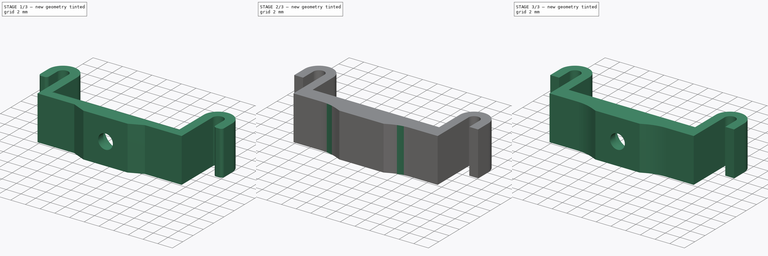
[diagram: build sequence overview — one tinted view per stage of 3, left to right]
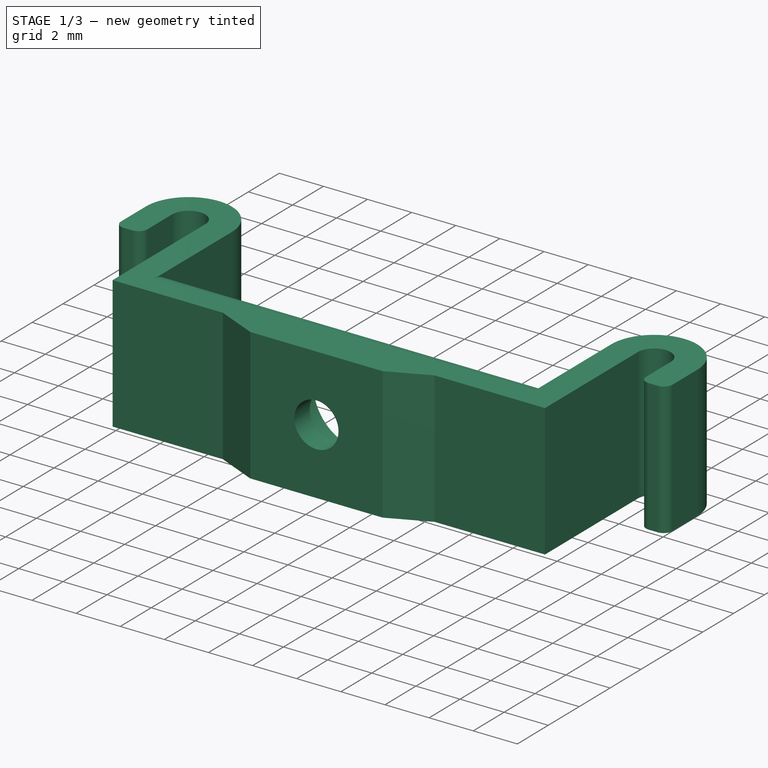
[diagram: stage 1 of 3 — iso view after this stage's code; geometry added in this stage tinted green]
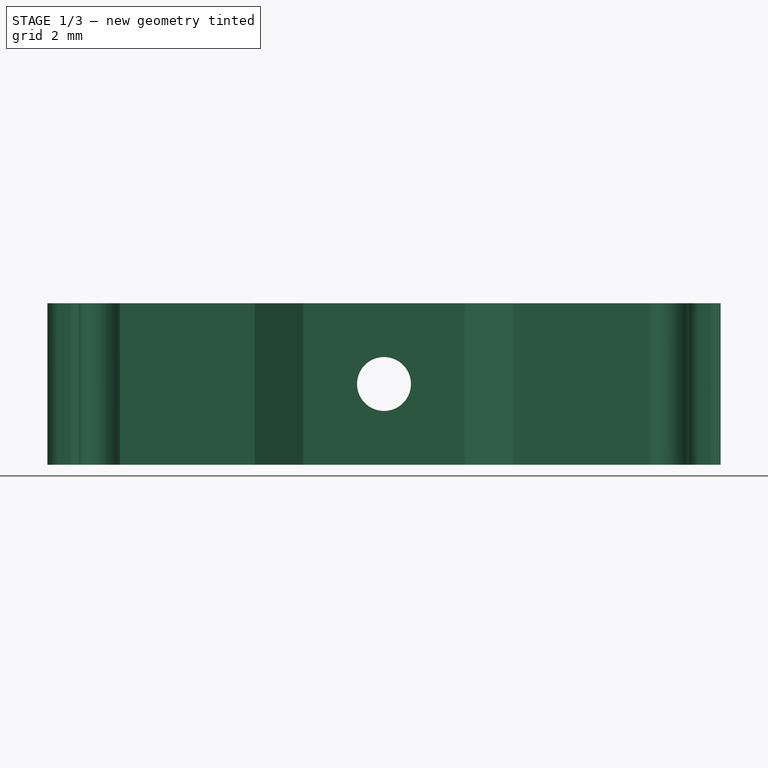
[diagram: stage 1 of 3 — front view after this stage's code; geometry added in this stage tinted green]
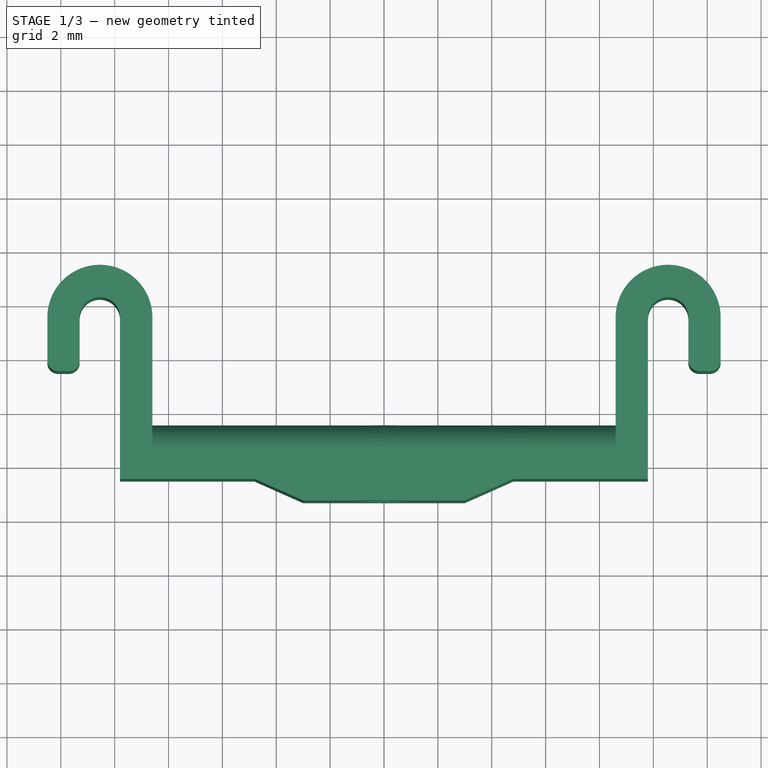
[diagram: stage 1 of 3 — top view after this stage's code; geometry added in this stage tinted green]
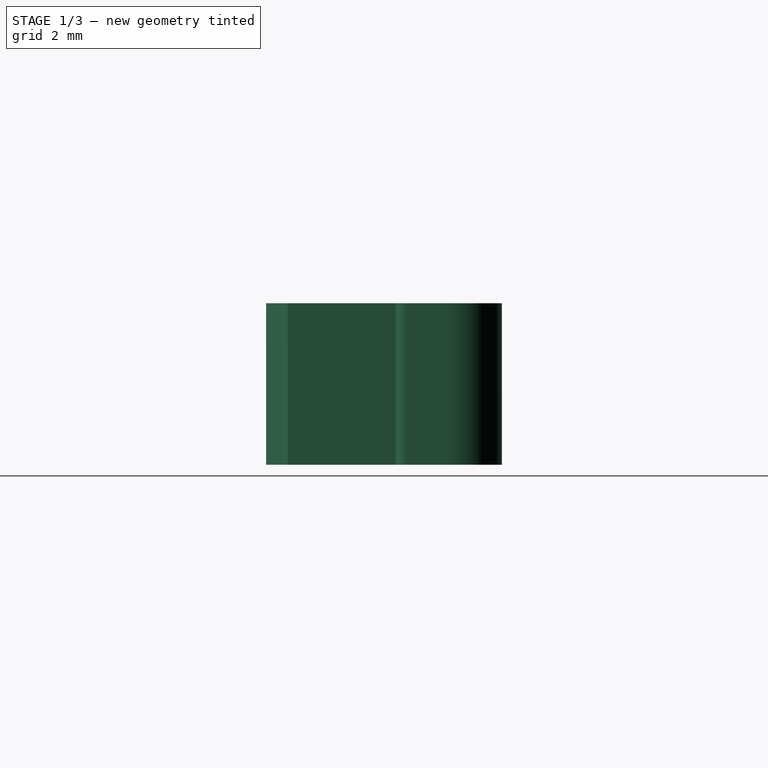
[diagram: stage 1 of 3 — right view after this stage's code; geometry added in this stage tinted green]
FCSTD DOCUMENT  (FreeCAD 0.16R6707 (Git))
Label: battery_holder_2s_tgy_nano_300
License: All rights reserved
LicenseURL: http://en.wikipedia.org/wiki/All_rights_reserved
objects: PartDesign::Fillet×4, Sketcher::SketchObject×3, PartDesign::Pocket×2, PartDesign::Pad×1, Part::Feature×1
note: 14 computed .brp shape members not serialized (recipe doc carries the construction recipe); baked Part::Feature solids carry a one-line shape summary decoded from their .brp

FEATURE [Part::Feature] Pocket001001  label="Pocket002"
  shape: bbox 25 x 8.75 x 6 mm, 25 faces (baked)
FEATURE [PartDesign::Fillet] Fillet
  Base = -> Pocket001001 [Edge27,Edge44]
  Radius = 1
FEATURE [PartDesign::Fillet] Fillet001
  Base = -> Fillet [Edge80,Edge78,Edge74,Edge73]
  Radius = 0.4
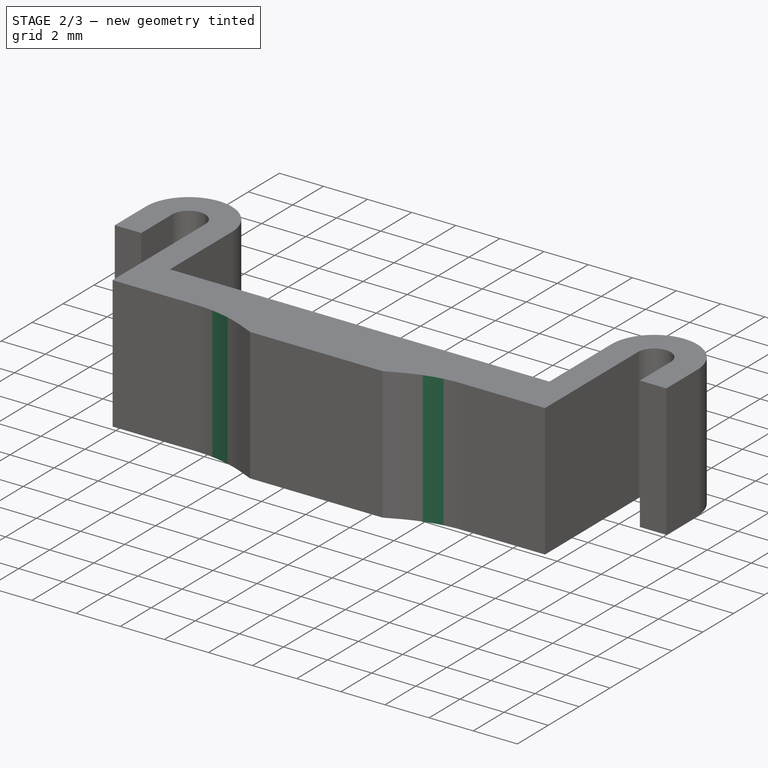
[diagram: stage 2 of 3 — iso view after this stage's code; geometry added in this stage tinted green]
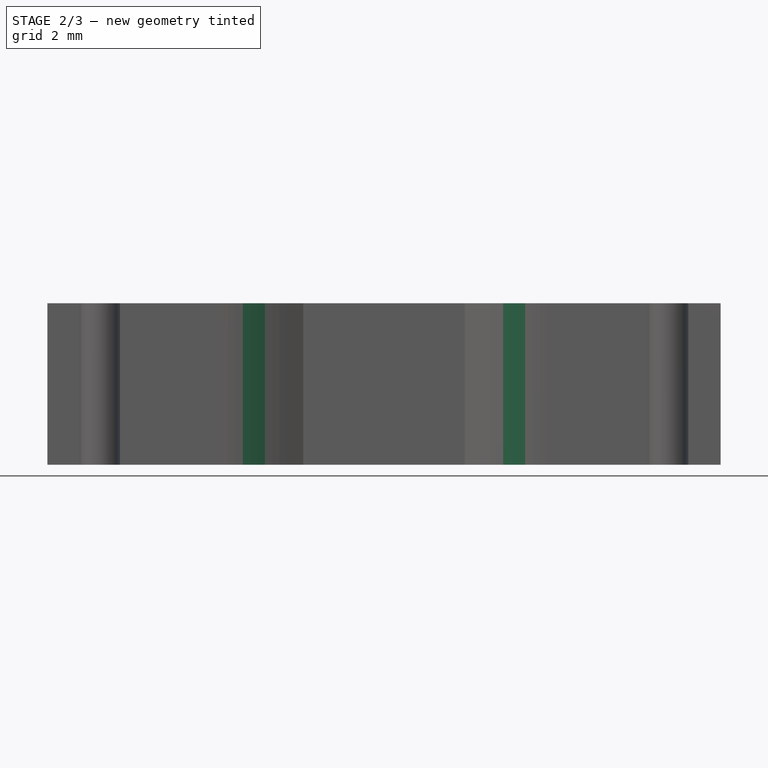
[diagram: stage 2 of 3 — front view after this stage's code; geometry added in this stage tinted green]
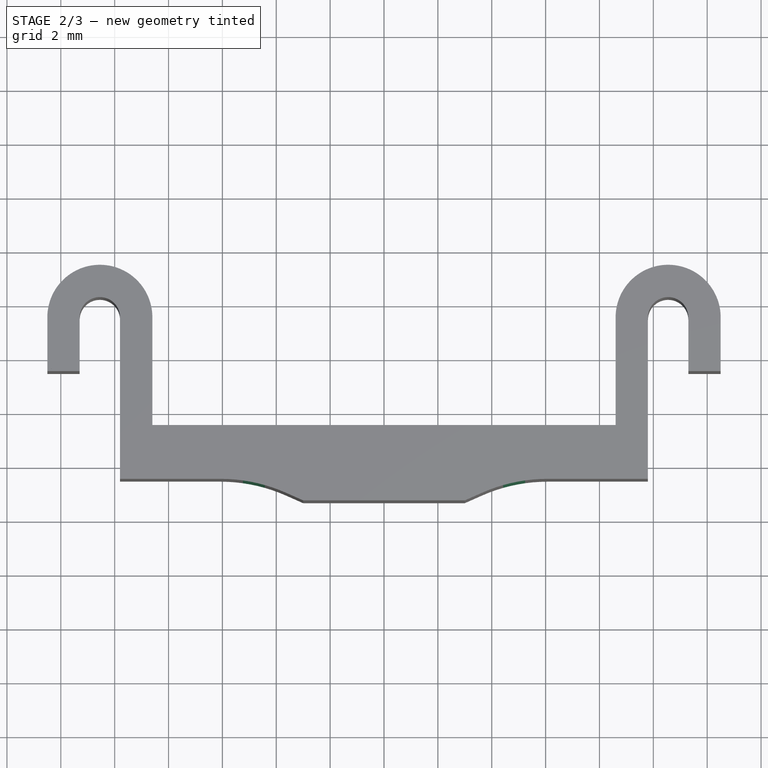
[diagram: stage 2 of 3 — top view after this stage's code; geometry added in this stage tinted green]
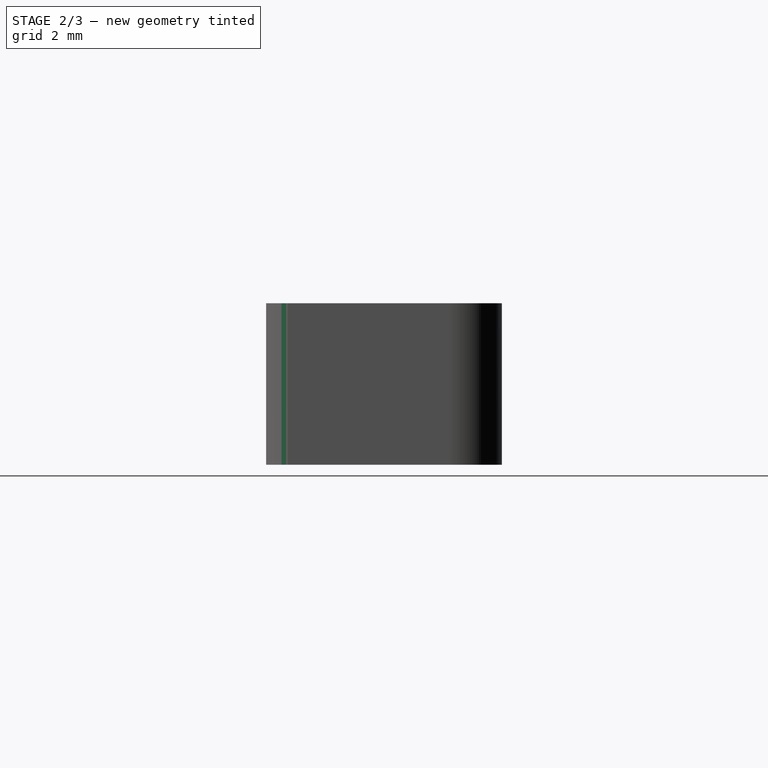
[diagram: stage 2 of 3 — right view after this stage's code; geometry added in this stage tinted green]
FEATURE [Sketcher::SketchObject] Sketch
  Placement = pos=(0,0,3) rot=(0,0,1;0rad)
  sketch-geometry (28):
    g0: LineSegment [constr] StartX=0 StartY=0 StartZ=0 EndX=-8.5 EndY=0 EndZ=0
    g1: LineSegment [constr] StartX=-8.5 StartY=0 StartZ=0 EndX=-8.5 EndY=13 EndZ=0
    g2: LineSegment [constr] StartX=0 StartY=0 StartZ=0 EndX=8.5 EndY=0 EndZ=0
    g3: LineSegment [constr] StartX=8.5 StartY=0 StartZ=0 EndX=8.5 EndY=13 EndZ=0
    g4: LineSegment [constr] StartX=8.5 StartY=13 StartZ=0 EndX=-8.5 EndY=13 EndZ=0
    g5: LineSegment StartX=-9.8 StartY=3.5 StartZ=0 EndX=-9.8 EndY=-2.5 EndZ=0
    g6: LineSegment StartX=-3 StartY=-3.3 StartZ=0 EndX=3 EndY=-3.3 EndZ=0
    g7: LineSegment StartX=9.01388 StartY=3.5 StartZ=0 EndX=8.6 EndY=3.5 EndZ=0
    g8: LineSegment StartX=-8.6 StartY=3.5 StartZ=0 EndX=-8.6 EndY=-0.5 EndZ=0
    g9: LineSegment StartX=-8.6 StartY=-0.5 StartZ=0 EndX=8.6 EndY=-0.5 EndZ=0
    g10: LineSegment StartX=-3 StartY=-3.3 StartZ=0 EndX=-4.8 EndY=-2.5 EndZ=0
    g11: LineSegment StartX=-9.8 StartY=-2.5 StartZ=0 EndX=-4.8 EndY=-2.5 EndZ=0
    g12: LineSegment StartX=-12.5 StartY=3.5 StartZ=0 EndX=-12.5 EndY=1.5 EndZ=0
    g13: LineSegment StartX=-12.5 StartY=1.5 StartZ=0 EndX=-11.3 EndY=1.5 EndZ=0
    g14: LineSegment StartX=-11.3 StartY=3.5 StartZ=0 EndX=-11.3 EndY=1.5 EndZ=0
    g15: LineSegment [constr] StartX=-12.5 StartY=3.5 StartZ=0 EndX=-9.01162 EndY=3.5 EndZ=0
    g16: ArcOfCircle CenterX=-10.55 CenterY=3.5 CenterZ=0 NormalX=0 NormalY=0 NormalZ=1 Radius=1.95 StartAngle=1.23125e-06 EndAngle=3.14159
    g17: ArcOfCircle CenterX=-10.55 CenterY=3.5 CenterZ=0 NormalX=0 NormalY=0 NormalZ=1 Radius=0.75 StartAngle=0 EndAngle=3.14159
    g18: LineSegment StartX=3 StartY=-3.3 StartZ=0 EndX=4.8 EndY=-2.5 EndZ=0
    g19: LineSegment StartX=4.8 StartY=-2.5 StartZ=0 EndX=9.8 EndY=-2.5 EndZ=0
    g20: LineSegment StartX=8.6 StartY=-0.5 StartZ=0 EndX=8.6 EndY=3.5 EndZ=0
    g21: LineSegment [constr] StartX=8.6 StartY=3.5 StartZ=0 EndX=12.5 EndY=3.5 EndZ=0
    g22: LineSegment StartX=12.5 StartY=3.5 StartZ=0 EndX=12.5 EndY=1.5 EndZ=0
    g23: LineSegment StartX=12.5 StartY=1.5 StartZ=0 EndX=11.3 EndY=1.5 EndZ=0
    g24: LineSegment StartX=11.3 StartY=1.5 StartZ=0 EndX=11.3 EndY=3.5 EndZ=0
    g25: LineSegment StartX=9.8 StartY=-2.5 StartZ=0 EndX=9.8 EndY=3.5 EndZ=0
    g26: ArcOfCircle CenterX=10.55 CenterY=3.5 CenterZ=0 NormalX=0 NormalY=0 NormalZ=1 Radius=0.75 StartAngle=0 EndAngle=3.14159
    g27: ArcOfCircle CenterX=10.55 CenterY=3.5 CenterZ=0 NormalX=0 NormalY=0 NormalZ=1 Radius=1.95 StartAngle=0 EndAngle=3.14159
  constraints (83):
    c: PointOnObject(g0,g-1)
    c: Horizontal(g0)
    c: Coincident(g1,g0)
    c: Vertical(g1)
    c: Coincident(g2,g-1)
    c: PointOnObject(g2,g-1)
    c: Coincident(g3,g2)
    c: Vertical(g3)
    c: Coincident(g4,g3)
    c: Coincident(g4,g1)
    c: Horizontal(g4)
    c: Equal(g0,g2)
    c: DistanceX(g4,g4) = 17
    c: Coincident(g0,g-1)
    c: DistanceY(g1,g1) = 13
    c: Vertical(g5)
    c: Horizontal(g6)
    c: Horizontal(g7)
    c: Vertical(g8)
    c: Coincident(g9,g8)
    c: Horizontal(g9)
    c: Symmetric(g8,g7,g-2)
    c: Distance(g0,g8) = 0.1
    c: Distance(g-1,g9) = 0.5
    c: Distance(g8,g6) = 2.8
    c: Distance(g8,g5) = 1.2
    c: Coincident(g11,g10)
    c: Horizontal(g11)
    c: Vertical(g12)
    c: Coincident(g13,g12)
    c: Horizontal(g13)
    c: Coincident(g14,g13)
    c: Vertical(g14)
    c: Distance(g13,g5) = 1.5
    c: DistanceX(g13,g13) = 1.2
    c: Coincident(g15,g12)
    c: PointOnObject(g5,g15)
    c: PointOnObject(g14,g15)
    c: Horizontal(g15)
    c: PointOnObject(g16,g15)
    c: Coincident(g16,g8)
    c: Coincident(g16,g12)
    c: Coincident(g17,g16)
    c: Coincident(g17,g14)
    c: Coincident(g17,g5)
    c: DistanceY(g12,g12) = 2
    c: Coincident(g5,g11)
    c: Coincident(g6,g10)
    c: Coincident(g19,g18)
    c: Horizontal(g19)
    c: Coincident(g6,g18)
    c: Equal(g11,g19)
    c: Equal(g10,g18)
    c: PointOnObject(g18,g11)
    c: Symmetric(g6,g6,g-2)
    c: Coincident(g20,g9)
    c: Vertical(g20)
    c: Coincident(g21,g20)
    c: Horizontal(g21)
    c: Coincident(g22,g21)
    c: Vertical(g22)
    c: Coincident(g23,g22)
    c: Horizontal(g23)
    c: Coincident(g24,g23)
    c: PointOnObject(g24,g21)
    c: Vertical(g24)
    c: Coincident(g25,g19)
    c: PointOnObject(g25,g21)
    c: Vertical(g25)
    c: PointOnObject(g26,g21)
    c: Coincident(g26,g25)
    c: Coincident(g26,g24)
    c: Coincident(g27,g26)
    c: Coincident(g27,g20)
    c: Coincident(g27,g21)
    c: Equal(g27,g16)
    c: Equal(g17,g26)
    c: Equal(g22,g12)
    c: Equal(g20,g8)
    c: DistanceY(g8,g8) = 4
    c: Distance(g18,g9) = 2
    c: DistanceX(g6,g6) = 6
    c: DistanceX(g11,g11) = 5
FEATURE [PartDesign::Pad] Pad
  Length = 6
  Length2 = 100
  Midplane = true
  Placement = pos=(0,0,3) rot=(0,0,1;0rad)
  Sketch = -> Sketch
  Type = 0
FEATURE [PartDesign::Fillet] Fillet002
  Base = -> Fillet001 [Edge75,Edge53]
  Radius = 1.5
FEATURE [PartDesign::Fillet] Fillet003
  Base = -> Fillet002 [Edge51,Edge38]
  Radius = 6
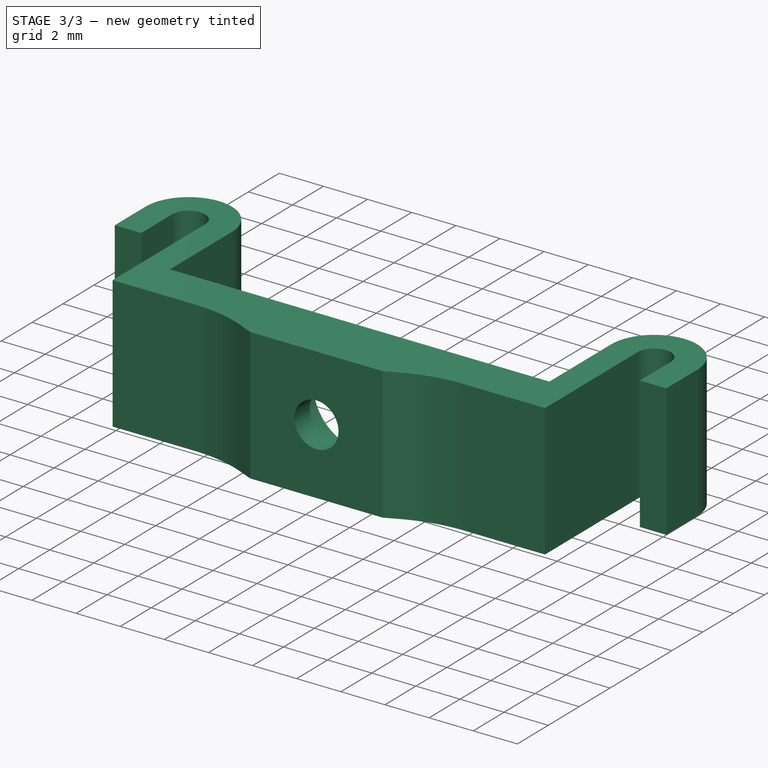
[diagram: stage 3 of 3 — iso view after this stage's code; geometry added in this stage tinted green]
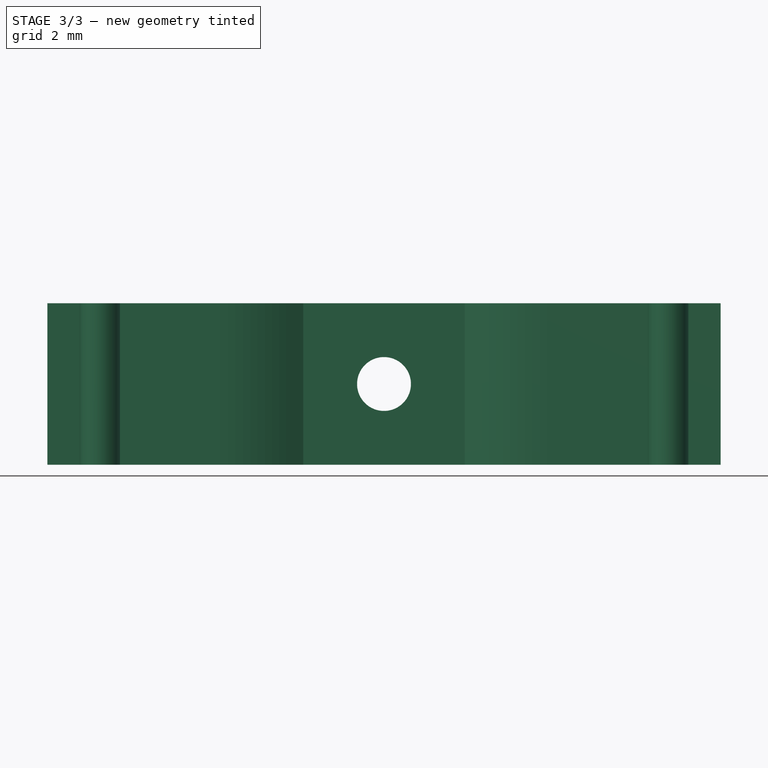
[diagram: stage 3 of 3 — front view after this stage's code; geometry added in this stage tinted green]
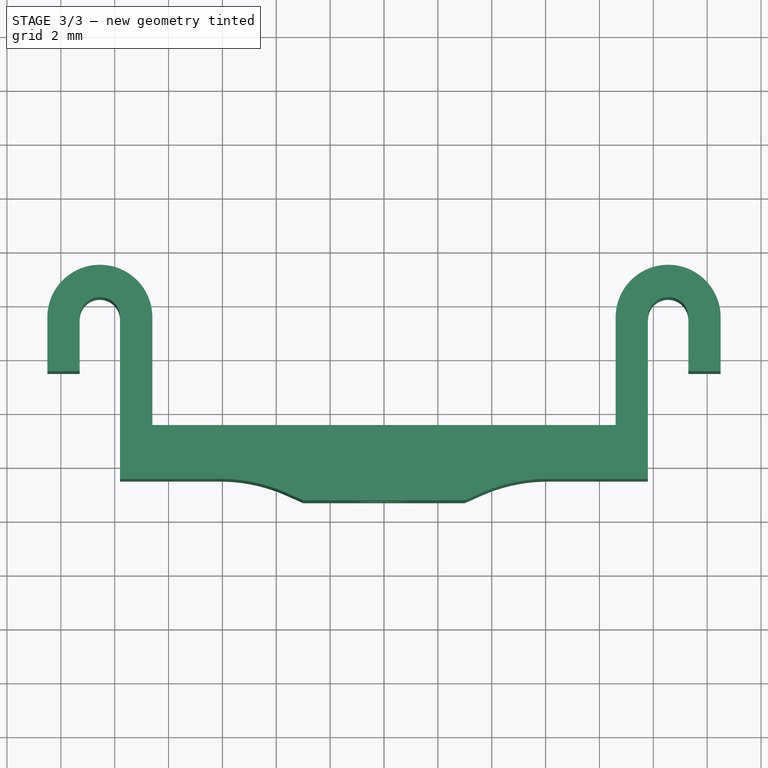
[diagram: stage 3 of 3 — top view after this stage's code; geometry added in this stage tinted green]
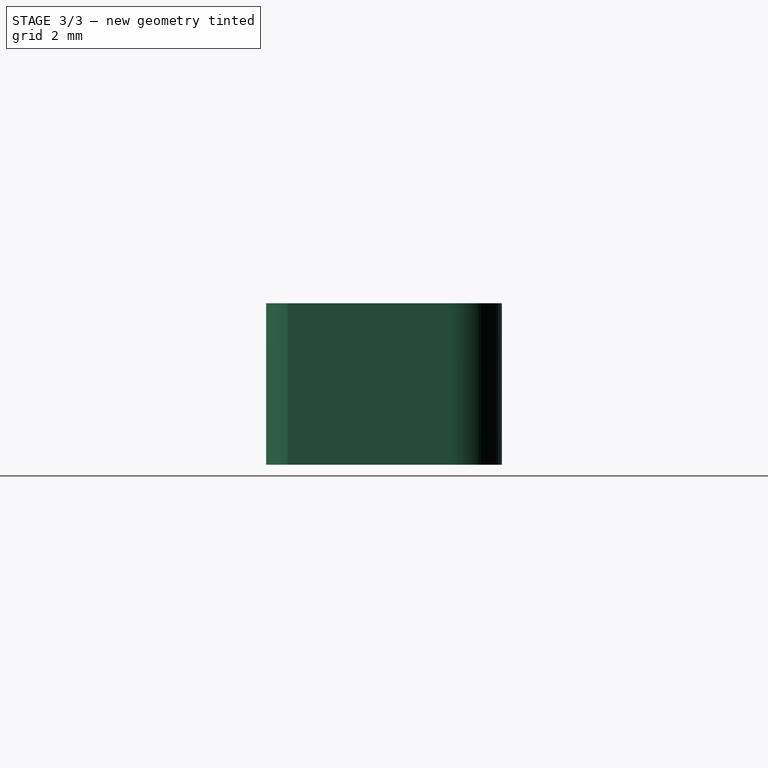
[diagram: stage 3 of 3 — right view after this stage's code; geometry added in this stage tinted green]
FEATURE [Sketcher::SketchObject] Sketch001
  Placement = pos=(0,-0.5,3) rot=(0,0.707107,0.707107;3.14159rad)
  Support = -> Pad [Face19]
  sketch-geometry (1):
    g0: Circle CenterX=0 CenterY=0 CenterZ=0 NormalX=0 NormalY=0 NormalZ=1 Radius=2.1
  constraints (2):
    c: Coincident(g0,g-1)
    c: Radius(g0) = 2.1
FEATURE [PartDesign::Pocket] Pocket
  Length = 1.8
  Placement = pos=(0,0,3) rot=(0,0,1;0rad)
  Sketch = -> Sketch001
  Type = 0
FEATURE [Sketcher::SketchObject] Sketch002
  Placement = pos=(0,-2.3,3) rot=(0,0.707107,0.707107;3.14159rad)
  Support = -> Pocket [Face24]
  sketch-geometry (1):
    g0: Circle CenterX=0 CenterY=0 CenterZ=0 NormalX=0 NormalY=0 NormalZ=1 Radius=1
  constraints (2):
    c: Coincident(g0,g-1)
    c: Radius(g0) = 1
FEATURE [PartDesign::Pocket] Pocket001
  Length = 5
  Placement = pos=(0,0,3) rot=(0,0,1;0rad)
  Sketch = -> Sketch002
  Type = 0
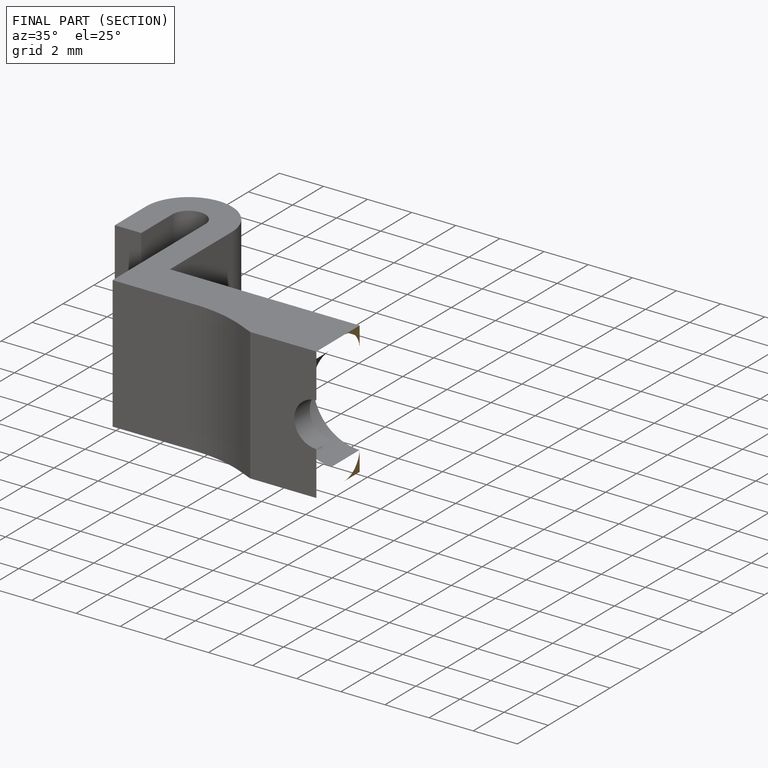
[diagram: finished part — half-section view (interior)]
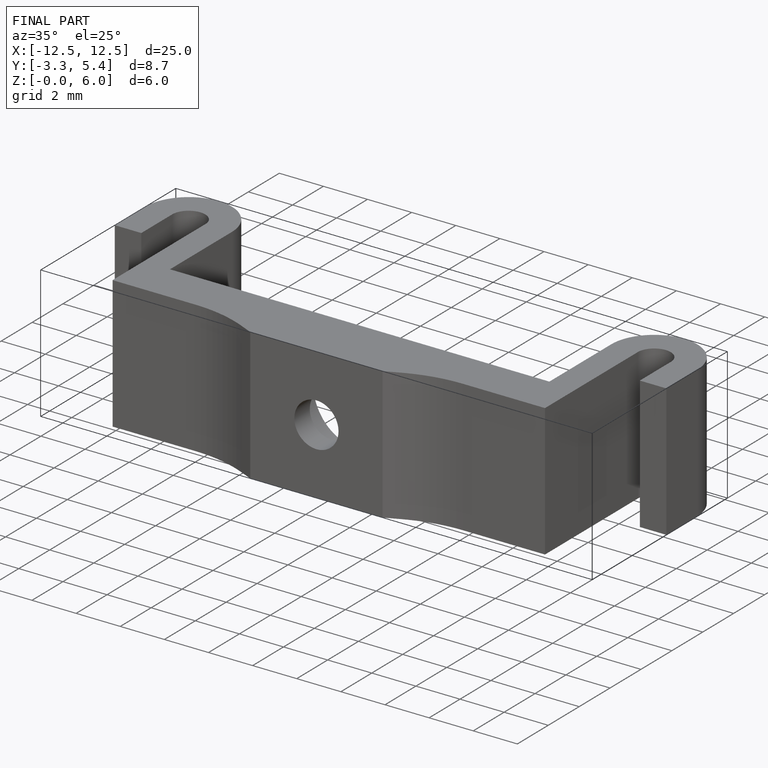
[diagram: finished part — iso view with bounding-box wireframe]
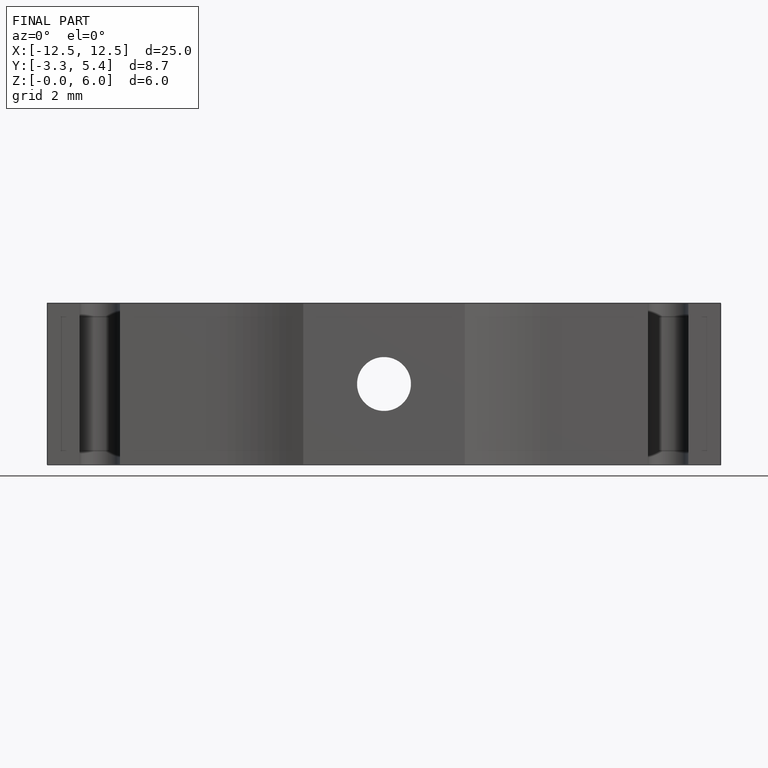
[diagram: finished part — front view with bounding-box wireframe]
